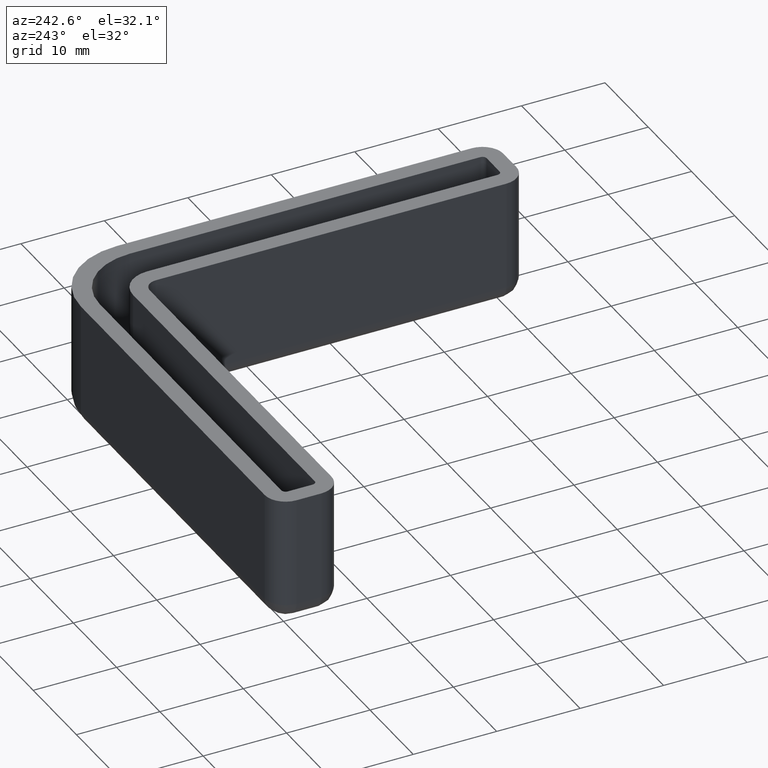
[diagram: clean part render]
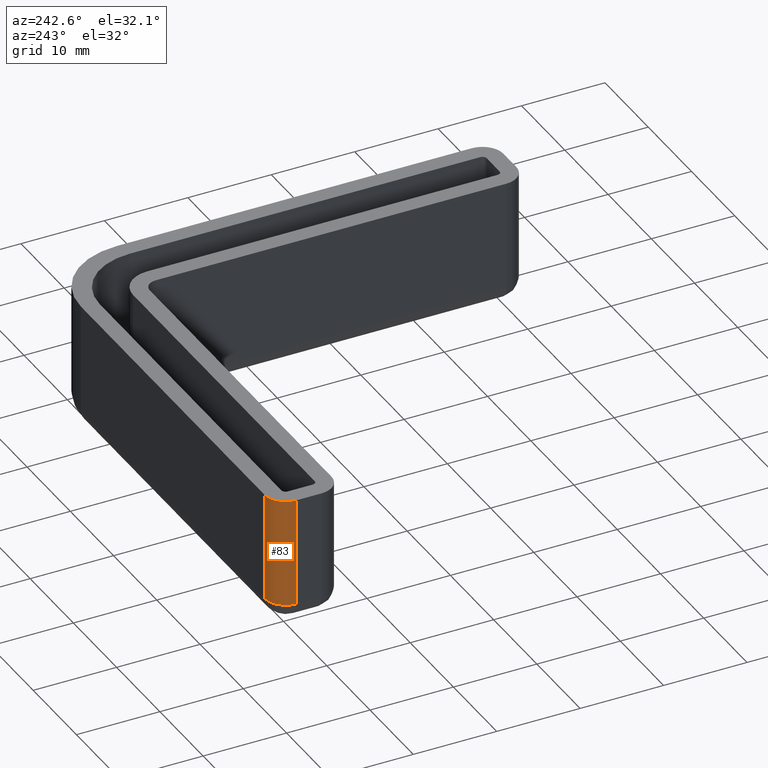
[diagram: same view with one face highlighted and labeled with its STEP entity id]
A machine part, auxiliary view. The second image highlights one B-rep face of the part: STEP entity #83.
In plain terms, the highlighted cylindrical surface (edge-blend (fillet) strip) has radius 2.5 mm, axis along (0, 0, -1).
Its self-contained STEP definition (entity closure, byte-faithful):
#83 = ADVANCED_FACE( '', ( #132 ), #133, .T. );
#132 = FACE_OUTER_BOUND( '', #211, .T. );
#133 = CYLINDRICAL_SURFACE( '', #212, 2.50000000000000 );
#211 = EDGE_LOOP( '', ( #445, #446, #447, #448 ) );
#212 = AXIS2_PLACEMENT_3D( '', #449, #450, #451 );
#445 = ORIENTED_EDGE( '', *, *, #705, .F. );
#446 = ORIENTED_EDGE( '', *, *, #706, .T. );
#447 = ORIENTED_EDGE( '', *, *, #707, .T. );
#448 = ORIENTED_EDGE( '', *, *, #662, .F. );
#449 = CARTESIAN_POINT( '', ( -49.5000000000000, -0.499999999999994, -15.0000000000000 ) );
#450 = DIRECTION( '', ( 0.000000000000000, 0.000000000000000, -1.00000000000000 ) );
#451 = DIRECTION( '', ( 1.00000000000000, -1.83690953073357E-016, 0.000000000000000 ) );
#662 = EDGE_CURVE( '', #761, #763, #764, .T. );
#705 = EDGE_CURVE( '', #840, #761, #842, .T. );
#706 = EDGE_CURVE( '', #840, #843, #844, .T. );
#707 = EDGE_CURVE( '', #843, #763, #845, .T. );
#761 = VERTEX_POINT( '', #918 );
#763 = VERTEX_POINT( '', #921 );
#764 = CIRCLE( '', #922, 2.50000000000000 );
#840 = VERTEX_POINT( '', #1022 );
#842 = LINE( '', #1025, #1026 );
#843 = VERTEX_POINT( '', #1027 );
#844 = CIRCLE( '', #1028, 2.50000000000000 );
#845 = LINE( '', #1029, #1030 );
#918 = CARTESIAN_POINT( '', ( -49.5000000000000, 2.00000000000001, 0.000000000000000 ) );
#921 = CARTESIAN_POINT( '', ( -52.0000000000000, -0.499999999999994, 0.000000000000000 ) );
#922 = AXIS2_PLACEMENT_3D( '', #1128, #1129, #1130 );
#1022 = CARTESIAN_POINT( '', ( -49.5000000000000, 2.00000000000001, -13.0000000000000 ) );
#1025 = CARTESIAN_POINT( '', ( -49.5000000000000, 2.00000000000001, -15.0000000000000 ) );
#1026 = VECTOR( '', #1207, 1000.00000000000 );
#1027 = CARTESIAN_POINT( '', ( -52.0000000000000, -0.499999999999994, -13.0000000000000 ) );
#1028 = AXIS2_PLACEMENT_3D( '', #1208, #1209, #1210 );
#1029 = CARTESIAN_POINT( '', ( -52.0000000000000, -0.499999999999994, -15.0000000000000 ) );
#1030 = VECTOR( '', #1211, 1000.00000000000 );
#1128 = CARTESIAN_POINT( '', ( -49.5000000000000, -0.499999999999994, 0.000000000000000 ) );
#1129 = DIRECTION( '', ( 0.000000000000000, 0.000000000000000, 1.00000000000000 ) );
#1130 = DIRECTION( '', ( 1.83690953073357E-016, 1.00000000000000, 0.000000000000000 ) );
#1207 = DIRECTION( '', ( 0.000000000000000, 0.000000000000000, 1.00000000000000 ) );
#1208 = CARTESIAN_POINT( '', ( -49.5000000000000, -0.499999999999994, -13.0000000000000 ) );
#1209 = DIRECTION( '', ( 0.000000000000000, 0.000000000000000, 1.00000000000000 ) );
#1210 = DIRECTION( '', ( -1.00000000000000, 1.22460635382238E-016, 0.000000000000000 ) );
#1211 = DIRECTION( '', ( 0.000000000000000, 0.000000000000000, 1.00000000000000 ) );